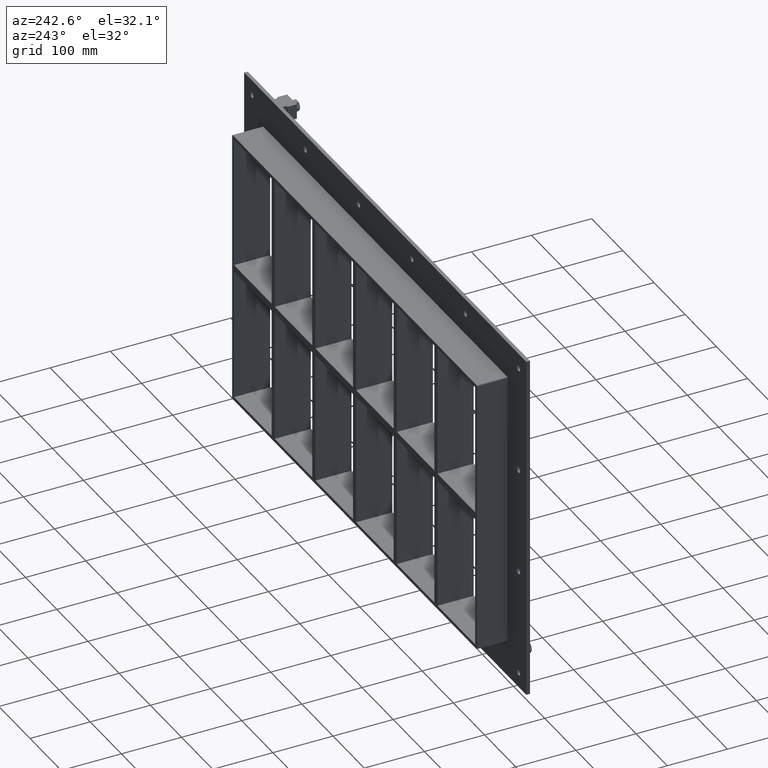
[diagram: clean part render]
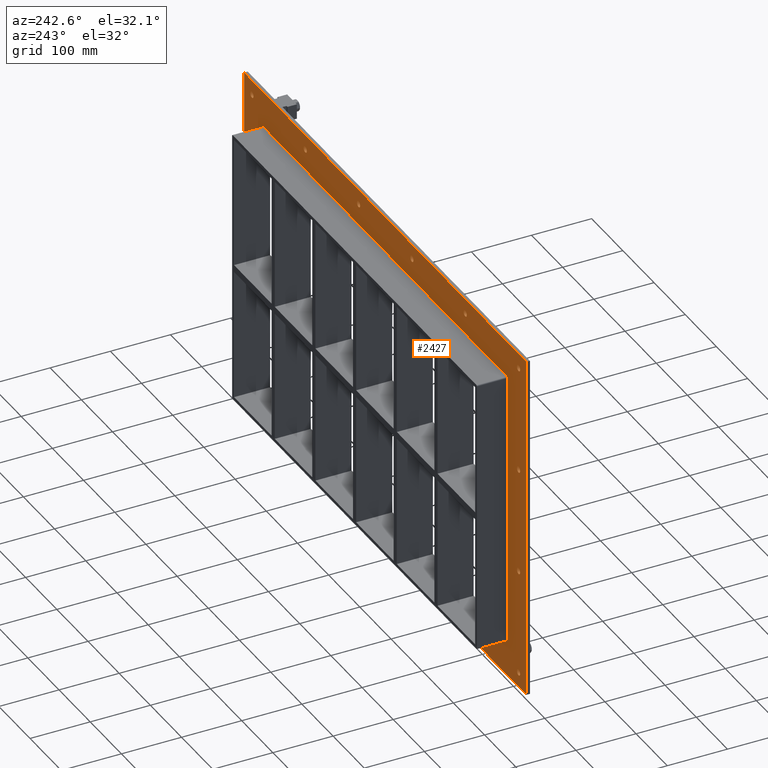
[diagram: same view with one face highlighted and labeled with its STEP entity id]
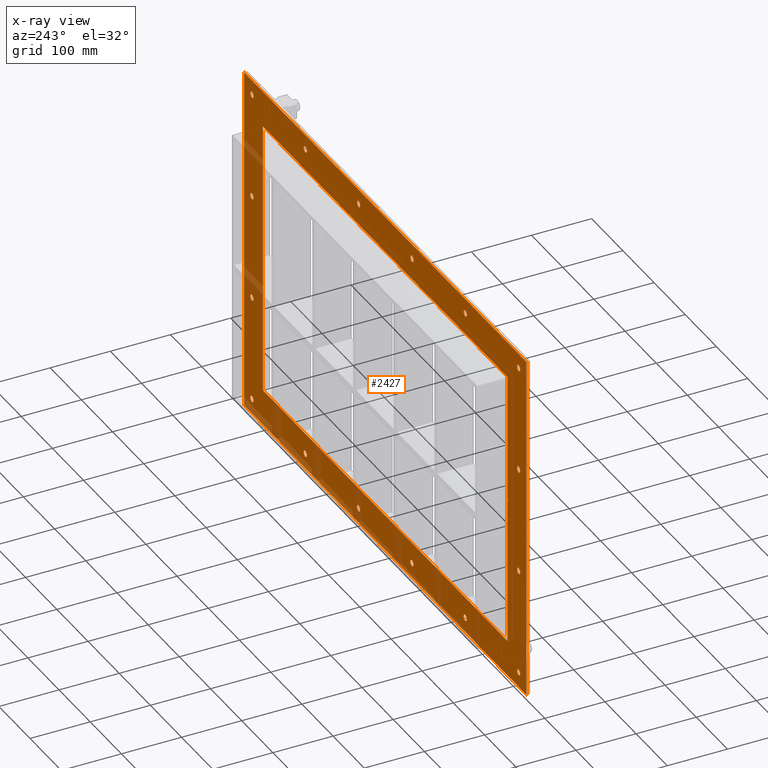
[diagram: x-ray of the same camera — body ghosted, the highlighted face saturated]
A machine part, auxiliary view. The second image highlights one B-rep face of the part: STEP entity #2427.
The next image is the same camera in x-ray: the body ghosted, the highlighted face saturated — about 10% of this face is hidden behind the body in this view.
In plain terms, the highlighted planar face has unit normal (0, 1, 0).
Its self-contained STEP definition (entity closure, byte-faithful):
#73=CARTESIAN_POINT('',(-432.50000000000006,5.999999999999943,-264.99999999999994));
#74=VERTEX_POINT('',#73);
#75=CARTESIAN_POINT('',(-427.50000000000006,5.999999999999943,-264.99999999999994));
#76=DIRECTION('',(0.0,-1.0,0.0));
#77=DIRECTION('',(1.0,0.0,0.0));
#78=AXIS2_PLACEMENT_3D('',#75,#76,#77);
#79=CIRCLE('',#78,5.0);
#80=EDGE_CURVE('',#74,#74,#79,.T.);
#101=CARTESIAN_POINT('',(422.49999999999994,5.999999999999943,-88.300000000000054));
#102=VERTEX_POINT('',#101);
#103=CARTESIAN_POINT('',(427.49999999999994,5.999999999999943,-88.300000000000054));
#104=DIRECTION('',(0.0,-1.0,0.0));
#105=DIRECTION('',(1.0,0.0,0.0));
#106=AXIS2_PLACEMENT_3D('',#103,#104,#105);
#107=CIRCLE('',#106,5.0);
#108=EDGE_CURVE('',#102,#102,#107,.T.);
#129=CARTESIAN_POINT('',(-432.50000000000006,5.999999999999943,-88.300000000000054));
#130=VERTEX_POINT('',#129);
#131=CARTESIAN_POINT('',(-427.50000000000006,5.999999999999943,-88.300000000000054));
#132=DIRECTION('',(0.0,-1.0,0.0));
#133=DIRECTION('',(1.0,0.0,0.0));
#134=AXIS2_PLACEMENT_3D('',#131,#132,#133);
#135=CIRCLE('',#134,5.0);
#136=EDGE_CURVE('',#130,#130,#135,.T.);
#157=CARTESIAN_POINT('',(422.49999999999994,5.999999999999943,88.39999999999992));
#158=VERTEX_POINT('',#157);
#159=CARTESIAN_POINT('',(427.49999999999994,5.999999999999943,88.39999999999992));
#160=DIRECTION('',(0.0,-1.0,0.0));
#161=DIRECTION('',(1.0,0.0,0.0));
#162=AXIS2_PLACEMENT_3D('',#159,#160,#161);
#163=CIRCLE('',#162,5.0);
#164=EDGE_CURVE('',#158,#158,#163,.T.);
#185=CARTESIAN_POINT('',(-432.50000000000006,5.999999999999943,88.39999999999992));
#186=VERTEX_POINT('',#185);
#187=CARTESIAN_POINT('',(-427.50000000000006,5.999999999999943,88.39999999999992));
#188=DIRECTION('',(0.0,-1.0,0.0));
#189=DIRECTION('',(1.0,0.0,0.0));
#190=AXIS2_PLACEMENT_3D('',#187,#188,#189);
#191=CIRCLE('',#190,5.0);
#192=EDGE_CURVE('',#186,#186,#191,.T.);
#213=CARTESIAN_POINT('',(-261.50000000000011,5.999999999999943,265.09999999999991));
#214=VERTEX_POINT('',#213);
#215=CARTESIAN_POINT('',(-256.50000000000011,5.999999999999943,265.09999999999991));
#216=DIRECTION('',(0.0,-1.0,0.0));
#217=DIRECTION('',(1.0,0.0,0.0));
#218=AXIS2_PLACEMENT_3D('',#215,#216,#217);
#219=CIRCLE('',#218,5.0);
#220=EDGE_CURVE('',#214,#214,#219,.T.);
#241=CARTESIAN_POINT('',(-261.50000000000011,5.999999999999943,-265.0));
#242=VERTEX_POINT('',#241);
#243=CARTESIAN_POINT('',(-256.50000000000011,5.999999999999943,-265.0));
#244=DIRECTION('',(0.0,-1.0,0.0));
#245=DIRECTION('',(1.0,0.0,0.0));
#246=AXIS2_PLACEMENT_3D('',#243,#244,#245);
#247=CIRCLE('',#246,5.0);
#248=EDGE_CURVE('',#242,#242,#247,.T.);
#269=CARTESIAN_POINT('',(-90.500000000000114,5.999999999999943,265.09999999999991));
#270=VERTEX_POINT('',#269);
#271=CARTESIAN_POINT('',(-85.500000000000114,5.999999999999943,265.09999999999991));
#272=DIRECTION('',(0.0,-1.0,0.0));
#273=DIRECTION('',(1.0,0.0,0.0));
#274=AXIS2_PLACEMENT_3D('',#271,#272,#273);
#275=CIRCLE('',#274,5.0);
#276=EDGE_CURVE('',#270,#270,#275,.T.);
#297=CARTESIAN_POINT('',(-90.500000000000114,5.999999999999943,-265.0));
#298=VERTEX_POINT('',#297);
#299=CARTESIAN_POINT('',(-85.500000000000114,5.999999999999943,-265.0));
#300=DIRECTION('',(0.0,-1.0,0.0));
#301=DIRECTION('',(1.0,0.0,0.0));
#302=AXIS2_PLACEMENT_3D('',#299,#300,#301);
#303=CIRCLE('',#302,5.0);
#304=EDGE_CURVE('',#298,#298,#303,.T.);
#325=CARTESIAN_POINT('',(80.499999999999901,5.999999999999943,265.09999999999991));
#326=VERTEX_POINT('',#325);
#327=CARTESIAN_POINT('',(85.499999999999901,5.999999999999943,265.09999999999991));
#328=DIRECTION('',(0.0,-1.0,0.0));
#329=DIRECTION('',(1.0,0.0,0.0));
#330=AXIS2_PLACEMENT_3D('',#327,#328,#329);
#331=CIRCLE('',#330,5.0);
#332=EDGE_CURVE('',#326,#326,#331,.T.);
#353=CARTESIAN_POINT('',(80.499999999999901,5.999999999999943,-265.0));
#354=VERTEX_POINT('',#353);
#355=CARTESIAN_POINT('',(85.499999999999901,5.999999999999943,-265.0));
#356=DIRECTION('',(0.0,-1.0,0.0));
#357=DIRECTION('',(1.0,0.0,0.0));
#358=AXIS2_PLACEMENT_3D('',#355,#356,#357);
#359=CIRCLE('',#358,5.0);
#360=EDGE_CURVE('',#354,#354,#359,.T.);
#381=CARTESIAN_POINT('',(251.49999999999991,5.999999999999943,265.09999999999991));
#382=VERTEX_POINT('',#381);
#383=CARTESIAN_POINT('',(256.49999999999989,5.999999999999943,265.09999999999991));
#384=DIRECTION('',(0.0,-1.0,0.0));
#385=DIRECTION('',(1.0,0.0,0.0));
#386=AXIS2_PLACEMENT_3D('',#383,#384,#385);
#387=CIRCLE('',#386,5.0);
#388=EDGE_CURVE('',#382,#382,#387,.T.);
#409=CARTESIAN_POINT('',(251.49999999999991,5.999999999999943,-265.0));
#410=VERTEX_POINT('',#409);
#411=CARTESIAN_POINT('',(256.49999999999989,5.999999999999943,-265.0));
#412=DIRECTION('',(0.0,-1.0,0.0));
#413=DIRECTION('',(1.0,0.0,0.0));
#414=AXIS2_PLACEMENT_3D('',#411,#412,#413);
#415=CIRCLE('',#414,5.0);
#416=EDGE_CURVE('',#410,#410,#415,.T.);
#437=CARTESIAN_POINT('',(422.49999999999994,5.999999999999943,-265.0));
#438=VERTEX_POINT('',#437);
#439=CARTESIAN_POINT('',(427.49999999999994,5.999999999999943,-265.0));
#440=DIRECTION('',(0.0,-1.0,0.0));
#441=DIRECTION('',(1.0,0.0,0.0));
#442=AXIS2_PLACEMENT_3D('',#439,#440,#441);
#443=CIRCLE('',#442,5.0);
#444=EDGE_CURVE('',#438,#438,#443,.T.);
#465=CARTESIAN_POINT('',(-432.50000000000006,5.999999999999943,265.09999999999991));
#466=VERTEX_POINT('',#465);
#467=CARTESIAN_POINT('',(-427.50000000000006,5.999999999999943,265.09999999999991));
#468=DIRECTION('',(0.0,-1.0,0.0));
#469=DIRECTION('',(1.0,0.0,0.0));
#470=AXIS2_PLACEMENT_3D('',#467,#468,#469);
#471=CIRCLE('',#470,5.0);
#472=EDGE_CURVE('',#466,#466,#471,.T.);
#493=CARTESIAN_POINT('',(422.49999999999994,5.999999999999943,265.09999999999991));
#494=VERTEX_POINT('',#493);
#495=CARTESIAN_POINT('',(427.49999999999994,5.999999999999943,265.09999999999991));
#496=DIRECTION('',(0.0,-1.0,0.0));
#497=DIRECTION('',(1.0,0.0,0.0));
#498=AXIS2_PLACEMENT_3D('',#495,#496,#497);
#499=CIRCLE('',#498,5.0);
#500=EDGE_CURVE('',#494,#494,#499,.T.);
#2270=CARTESIAN_POINT('',(-4.593408E-014,6.000000000000001,-1.842148E-014));
#2271=DIRECTION('',(0.0,1.0,0.0));
#2272=DIRECTION('',(0.0,0.0,1.0));
#2273=AXIS2_PLACEMENT_3D('',#2270,#2271,#2272);
#2274=PLANE('',#2273);
#2275=CARTESIAN_POINT('',(-452.5,6.000000000000001,290.0));
#2276=VERTEX_POINT('',#2275);
#2277=CARTESIAN_POINT('',(452.5,6.000000000000001,290.0));
#2278=VERTEX_POINT('',#2277);
#2279=CARTESIAN_POINT('',(-452.5,6.000000000000001,290.0));
#2280=DIRECTION('',(1.0,0.0,0.0));
#2281=VECTOR('',#2280,905.0);
#2282=LINE('',#2279,#2281);
#2283=EDGE_CURVE('',#2276,#2278,#2282,.T.);
#2284=ORIENTED_EDGE('',*,*,#2283,.T.);
#2285=CARTESIAN_POINT('',(452.5,6.000000000000001,-290.0));
#2286=VERTEX_POINT('',#2285);
#2287=CARTESIAN_POINT('',(452.49999999999994,6.000000000000001,290.0));
#2288=DIRECTION('',(0.0,0.0,-1.0));
#2289=VECTOR('',#2288,580.0);
#2290=LINE('',#2287,#2289);
#2291=EDGE_CURVE('',#2278,#2286,#2290,.T.);
#2292=ORIENTED_EDGE('',*,*,#2291,.T.);
#2293=CARTESIAN_POINT('',(-452.5,6.000000000000001,-290.0));
#2294=VERTEX_POINT('',#2293);
#2295=CARTESIAN_POINT('',(452.49999999999994,6.000000000000001,-290.00000000000006));
#2296=DIRECTION('',(-1.0,0.0,0.0));
#2297=VECTOR('',#2296,905.0);
#2298=LINE('',#2295,#2297);
#2299=EDGE_CURVE('',#2286,#2294,#2298,.T.);
#2300=ORIENTED_EDGE('',*,*,#2299,.T.);
#2301=CARTESIAN_POINT('',(-452.5,6.000000000000001,-290.00000000000006));
#2302=DIRECTION('',(0.0,0.0,1.0));
#2303=VECTOR('',#2302,580.0);
#2304=LINE('',#2301,#2303);
#2305=EDGE_CURVE('',#2294,#2276,#2304,.T.);
#2306=ORIENTED_EDGE('',*,*,#2305,.T.);
#2307=EDGE_LOOP('',(#2284,#2292,#2300,#2306));
#2308=FACE_OUTER_BOUND('',#2307,.T.);
#2309=ORIENTED_EDGE('',*,*,#80,.T.);
#2310=EDGE_LOOP('',(#2309));
#2311=FACE_BOUND('',#2310,.T.);
#2312=ORIENTED_EDGE('',*,*,#108,.T.);
#2313=EDGE_LOOP('',(#2312));
#2314=FACE_BOUND('',#2313,.T.);
#2315=ORIENTED_EDGE('',*,*,#136,.T.);
#2316=EDGE_LOOP('',(#2315));
#2317=FACE_BOUND('',#2316,.T.);
#2318=ORIENTED_EDGE('',*,*,#164,.T.);
#2319=EDGE_LOOP('',(#2318));
#2320=FACE_BOUND('',#2319,.T.);
#2321=ORIENTED_EDGE('',*,*,#192,.T.);
#2322=EDGE_LOOP('',(#2321));
#2323=FACE_BOUND('',#2322,.T.);
#2324=ORIENTED_EDGE('',*,*,#220,.T.);
#2325=EDGE_LOOP('',(#2324));
#2326=FACE_BOUND('',#2325,.T.);
#2327=ORIENTED_EDGE('',*,*,#248,.T.);
#2328=EDGE_LOOP('',(#2327));
#2329=FACE_BOUND('',#2328,.T.);
#2330=ORIENTED_EDGE('',*,*,#276,.T.);
#2331=EDGE_LOOP('',(#2330));
#2332=FACE_BOUND('',#2331,.T.);
#2333=ORIENTED_EDGE('',*,*,#304,.T.);
#2334=EDGE_LOOP('',(#2333));
#2335=FACE_BOUND('',#2334,.T.);
#2336=ORIENTED_EDGE('',*,*,#332,.T.);
#2337=EDGE_LOOP('',(#2336));
#2338=FACE_BOUND('',#2337,.T.);
#2339=ORIENTED_EDGE('',*,*,#360,.T.);
#2340=EDGE_LOOP('',(#2339));
#2341=FACE_BOUND('',#2340,.T.);
#2342=ORIENTED_EDGE('',*,*,#388,.T.);
#2343=EDGE_LOOP('',(#2342));
#2344=FACE_BOUND('',#2343,.T.);
#2345=ORIENTED_EDGE('',*,*,#416,.T.);
#2346=EDGE_LOOP('',(#2345));
#2347=FACE_BOUND('',#2346,.T.);
#2348=ORIENTED_EDGE('',*,*,#444,.T.);
#2349=EDGE_LOOP('',(#2348));
#2350=FACE_BOUND('',#2349,.T.);
#2351=ORIENTED_EDGE('',*,*,#472,.T.);
#2352=EDGE_LOOP('',(#2351));
#2353=FACE_BOUND('',#2352,.T.);
#2354=ORIENTED_EDGE('',*,*,#500,.T.);
#2355=EDGE_LOOP('',(#2354));
#2356=FACE_BOUND('',#2355,.T.);
#2357=CARTESIAN_POINT('',(-392.5,6.000000000000001,228.00000000000006));
#2358=VERTEX_POINT('',#2357);
#2359=CARTESIAN_POINT('',(-390.5,6.000000000000001,230.00000000000003));
#2360=VERTEX_POINT('',#2359);
#2361=CARTESIAN_POINT('',(-390.5,6.000000000000001,228.00000000000006));
#2362=DIRECTION('',(0.0,1.0,0.0));
#2363=DIRECTION('',(-0.707106781186548,0.0,0.707106781186548));
#2364=AXIS2_PLACEMENT_3D('',#2361,#2362,#2363);
#2365=CIRCLE('',#2364,2.0);
#2366=EDGE_CURVE('',#2358,#2360,#2365,.T.);
#2367=ORIENTED_EDGE('',*,*,#2366,.F.);
#2368=CARTESIAN_POINT('',(-392.5,6.000000000000001,-228.00000000000006));
#2369=VERTEX_POINT('',#2368);
#2370=CARTESIAN_POINT('',(-392.5,6.000000000000001,-228.00000000000003));
#2371=DIRECTION('',(0.0,0.0,1.0));
#2372=VECTOR('',#2371,456.00000000000011);
#2373=LINE('',#2370,#2372);
#2374=EDGE_CURVE('',#2369,#2358,#2373,.T.);
#2375=ORIENTED_EDGE('',*,*,#2374,.F.);
#2376=CARTESIAN_POINT('',(-390.5,6.000000000000001,-230.00000000000003));
#2377=VERTEX_POINT('',#2376);
#2378=CARTESIAN_POINT('',(-390.5,6.000000000000001,-228.00000000000006));
#2379=DIRECTION('',(0.0,1.0,0.0));
#2380=DIRECTION('',(-0.707106781186548,0.0,-0.707106781186548));
#2381=AXIS2_PLACEMENT_3D('',#2378,#2379,#2380);
#2382=CIRCLE('',#2381,2.0);
#2383=EDGE_CURVE('',#2377,#2369,#2382,.T.);
#2384=ORIENTED_EDGE('',*,*,#2383,.F.);
#2385=CARTESIAN_POINT('',(390.50000000000011,6.000000000000001,-230.00000000000003));
#2386=VERTEX_POINT('',#2385);
#2387=CARTESIAN_POINT('',(390.50000000000011,6.000000000000001,-230.00000000000003));
#2388=DIRECTION('',(-1.0,0.0,0.0));
#2389=VECTOR('',#2388,781.00000000000011);
#2390=LINE('',#2387,#2389);
#2391=EDGE_CURVE('',#2386,#2377,#2390,.T.);
#2392=ORIENTED_EDGE('',*,*,#2391,.F.);
#2393=CARTESIAN_POINT('',(392.50000000000006,6.000000000000001,-228.00000000000006));
#2394=VERTEX_POINT('',#2393);
#2395=CARTESIAN_POINT('',(390.50000000000011,6.000000000000001,-228.00000000000006));
#2396=DIRECTION('',(0.0,1.0,0.0));
#2397=DIRECTION('',(0.707106781186522,0.0,-0.707106781186573));
#2398=AXIS2_PLACEMENT_3D('',#2395,#2396,#2397);
#2399=CIRCLE('',#2398,2.0);
#2400=EDGE_CURVE('',#2394,#2386,#2399,.T.);
#2401=ORIENTED_EDGE('',*,*,#2400,.F.);
#2402=CARTESIAN_POINT('',(392.50000000000006,6.000000000000001,228.00000000000006));
#2403=VERTEX_POINT('',#2402);
#2404=CARTESIAN_POINT('',(392.50000000000006,6.000000000000001,228.00000000000006));
#2405=DIRECTION('',(0.0,0.0,-1.0));
#2406=VECTOR('',#2405,456.00000000000011);
#2407=LINE('',#2404,#2406);
#2408=EDGE_CURVE('',#2403,#2394,#2407,.T.);
#2409=ORIENTED_EDGE('',*,*,#2408,.F.);
#2410=CARTESIAN_POINT('',(390.50000000000006,6.000000000000001,230.00000000000003));
#2411=VERTEX_POINT('',#2410);
#2412=CARTESIAN_POINT('',(390.50000000000006,6.000000000000001,228.00000000000006));
#2413=DIRECTION('',(0.0,1.0,0.0));
#2414=DIRECTION('',(0.707106781186548,0.0,0.707106781186548));
#2415=AXIS2_PLACEMENT_3D('',#2412,#2413,#2414);
#2416=CIRCLE('',#2415,2.0);
#2417=EDGE_CURVE('',#2411,#2403,#2416,.T.);
#2418=ORIENTED_EDGE('',*,*,#2417,.F.);
#2419=CARTESIAN_POINT('',(-390.5,6.000000000000001,230.00000000000003));
#2420=DIRECTION('',(1.0,0.0,0.0));
#2421=VECTOR('',#2420,781.0);
#2422=LINE('',#2419,#2421);
#2423=EDGE_CURVE('',#2360,#2411,#2422,.T.);
#2424=ORIENTED_EDGE('',*,*,#2423,.F.);
#2425=EDGE_LOOP('',(#2367,#2375,#2384,#2392,#2401,#2409,#2418,#2424));
#2426=FACE_BOUND('',#2425,.T.);
#2427=ADVANCED_FACE('',(#2308,#2311,#2314,#2317,#2320,#2323,#2326,#2329,#2332,#2335,#2338,#2341,#2344,#2347,#2350,#2353,#2356,#2426),#2274,.T.);